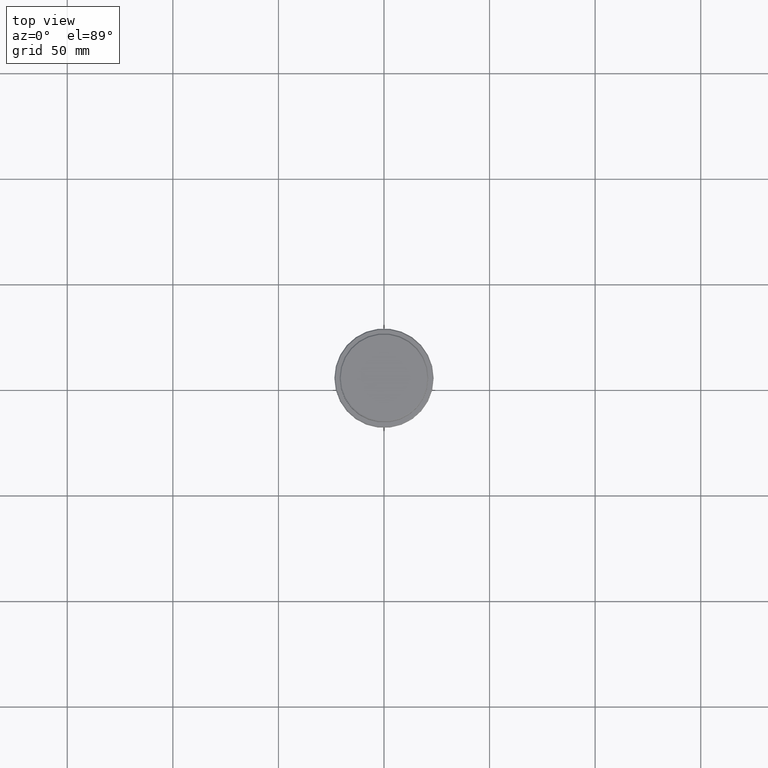
[diagram: clean part render]
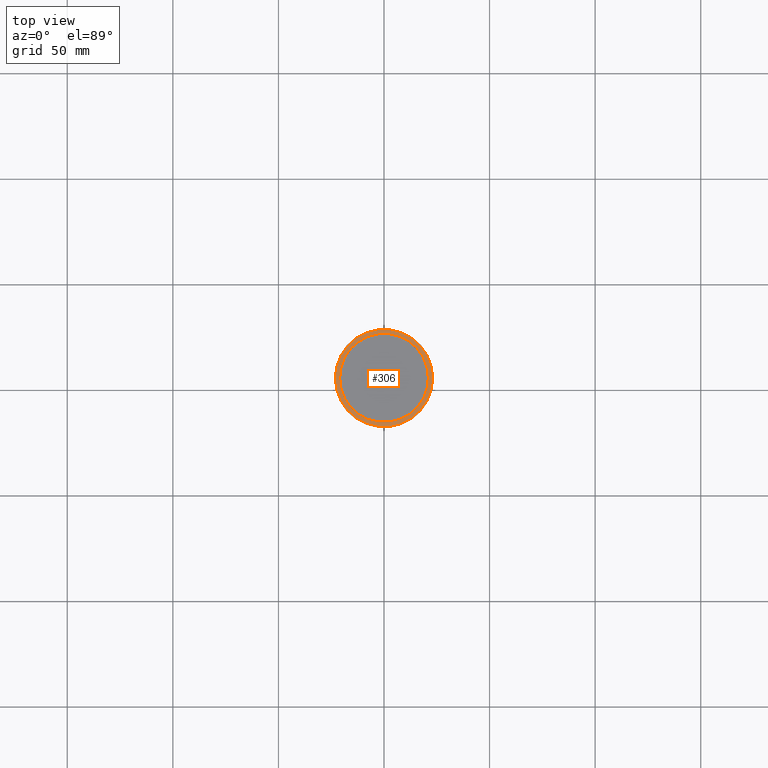
[diagram: same view with one face highlighted and labeled with its STEP entity id]
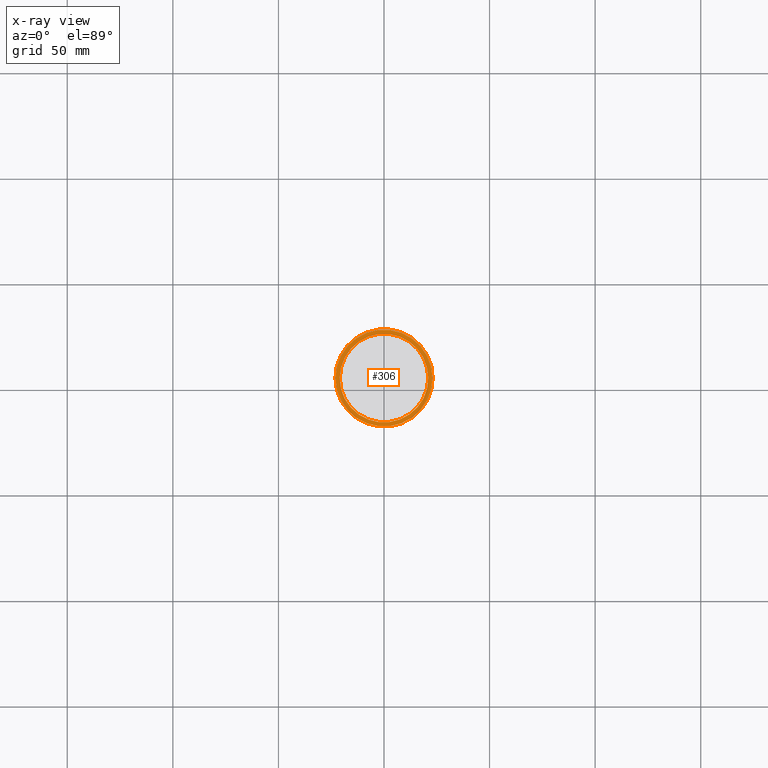
[diagram: x-ray of the same camera — body ghosted, the highlighted face saturated]
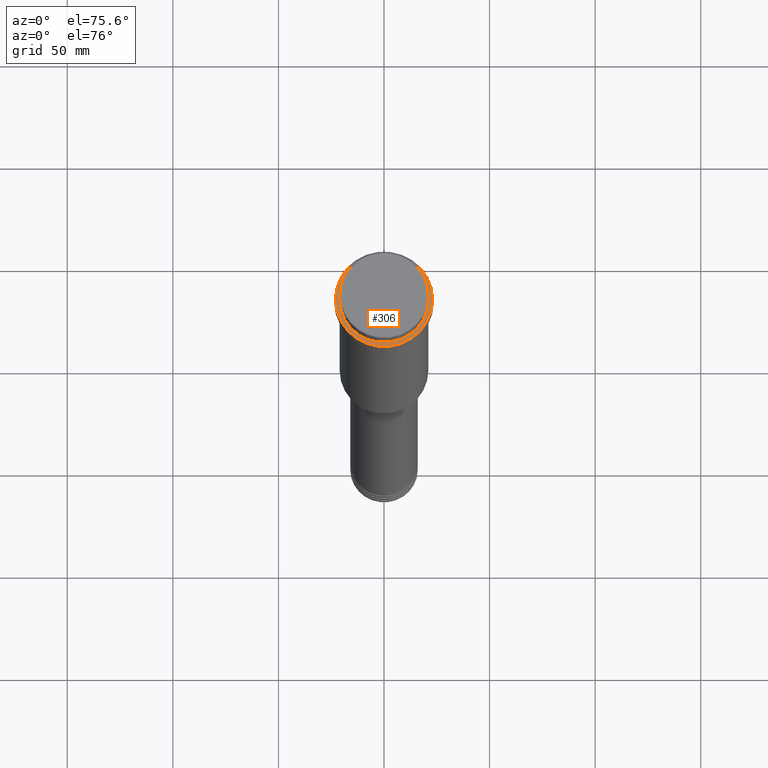
[diagram: same view with one face highlighted and labeled with its STEP entity id]
A machine part, top view. The second image highlights one B-rep face of the part: STEP entity #306.
The next image is the same camera in x-ray: the body ghosted, the highlighted face saturated — about 0% of this face is hidden behind the body in this view.
A second angle (auxiliary view) of the same face is appended — the face is thin or edge-on in the first view.
In plain terms, the highlighted planar face has unit normal (0, -0, 1).
Its self-contained STEP definition (entity closure, byte-faithful):
#62 = PLANE ( 'NONE',  #249 ) ;
#68 = EDGE_LOOP ( 'NONE', ( #1201, #1155 ) ) ;
#93 = DIRECTION ( 'NONE',  ( 0.000000000000000000, 0.000000000000000000, -1.000000000000000000 ) ) ;
#103 = EDGE_CURVE ( 'NONE', #652, #962, #934, .T. ) ;
#105 = CARTESIAN_POINT ( 'NONE',  ( 0.000000000000000000, 0.000000000000000000, -9.000000000000001776 ) ) ;
#139 = CIRCLE ( 'NONE', #827, 20.99999999999999289 ) ;
#141 = CARTESIAN_POINT ( 'NONE',  ( 0.000000000000000000, 0.000000000000000000, -9.000000000000001776 ) ) ;
#166 = AXIS2_PLACEMENT_3D ( 'NONE', #141, #586, #314 ) ;
#183 = FACE_BOUND ( 'NONE', #68, .T. ) ;
#188 = VERTEX_POINT ( 'NONE', #809 ) ;
#194 = DIRECTION ( 'NONE',  ( 1.000000000000000000, 0.000000000000000000, 0.000000000000000000 ) ) ;
#222 = VERTEX_POINT ( 'NONE', #965 ) ;
#237 = CARTESIAN_POINT ( 'NONE',  ( 0.000000000000000000, 0.000000000000000000, -9.000000000000001776 ) ) ;
#249 = AXIS2_PLACEMENT_3D ( 'NONE', #1260, #291, #938 ) ;
#266 = EDGE_LOOP ( 'NONE', ( #974, #1233 ) ) ;
#273 = AXIS2_PLACEMENT_3D ( 'NONE', #959, #734, #194 ) ;
#291 = DIRECTION ( 'NONE',  ( 0.000000000000000000, -0.000000000000000000, 1.000000000000000000 ) ) ;
#306 = ADVANCED_FACE ( 'NONE', ( #725, #183 ), #62, .T. ) ;
#314 = DIRECTION ( 'NONE',  ( 1.000000000000000000, 0.000000000000000000, 0.000000000000000000 ) ) ;
#484 = CIRCLE ( 'NONE', #273, 23.00000000000002487 ) ;
#586 = DIRECTION ( 'NONE',  ( -0.000000000000000000, -0.000000000000000000, 1.000000000000000000 ) ) ;
#652 = VERTEX_POINT ( 'NONE', #714 ) ;
#663 = CIRCLE ( 'NONE', #166, 23.00000000000002487 ) ;
#714 = CARTESIAN_POINT ( 'NONE',  ( -20.99999999999999289, 2.571758278209440872E-15, -9.000000000000001776 ) ) ;
#725 = FACE_OUTER_BOUND ( 'NONE', #266, .T. ) ;
#734 = DIRECTION ( 'NONE',  ( -0.000000000000000000, -0.000000000000000000, 1.000000000000000000 ) ) ;
#750 = EDGE_CURVE ( 'NONE', #222, #188, #663, .T. ) ;
#796 = AXIS2_PLACEMENT_3D ( 'NONE', #237, #1415, #883 ) ;
#809 = CARTESIAN_POINT ( 'NONE',  ( 23.00000000000002487, 2.847303808017597717E-15, -9.000000000000001776 ) ) ;
#827 = AXIS2_PLACEMENT_3D ( 'NONE', #105, #93, #1191 ) ;
#871 = CARTESIAN_POINT ( 'NONE',  ( 20.99999999999999289, 0.000000000000000000, -9.000000000000001776 ) ) ;
#883 = DIRECTION ( 'NONE',  ( 1.000000000000000000, 0.000000000000000000, 0.000000000000000000 ) ) ;
#884 = EDGE_CURVE ( 'NONE', #188, #222, #484, .T. ) ;
#934 = CIRCLE ( 'NONE', #796, 20.99999999999999289 ) ;
#938 = DIRECTION ( 'NONE',  ( 1.000000000000000000, 0.000000000000000000, 0.000000000000000000 ) ) ;
#959 = CARTESIAN_POINT ( 'NONE',  ( 0.000000000000000000, 0.000000000000000000, -9.000000000000001776 ) ) ;
#962 = VERTEX_POINT ( 'NONE', #871 ) ;
#965 = CARTESIAN_POINT ( 'NONE',  ( -23.00000000000002487, 0.000000000000000000, -9.000000000000001776 ) ) ;
#974 = ORIENTED_EDGE ( 'NONE', *, *, #750, .T. ) ;
#1155 = ORIENTED_EDGE ( 'NONE', *, *, #103, .T. ) ;
#1191 = DIRECTION ( 'NONE',  ( 1.000000000000000000, 0.000000000000000000, 0.000000000000000000 ) ) ;
#1201 = ORIENTED_EDGE ( 'NONE', *, *, #1364, .T. ) ;
#1233 = ORIENTED_EDGE ( 'NONE', *, *, #884, .T. ) ;
#1260 = CARTESIAN_POINT ( 'NONE',  ( 0.000000000000000000, 20.49999999999999645, -9.000000000000001776 ) ) ;
#1364 = EDGE_CURVE ( 'NONE', #962, #652, #139, .T. ) ;
#1415 = DIRECTION ( 'NONE',  ( 0.000000000000000000, 0.000000000000000000, -1.000000000000000000 ) ) ;